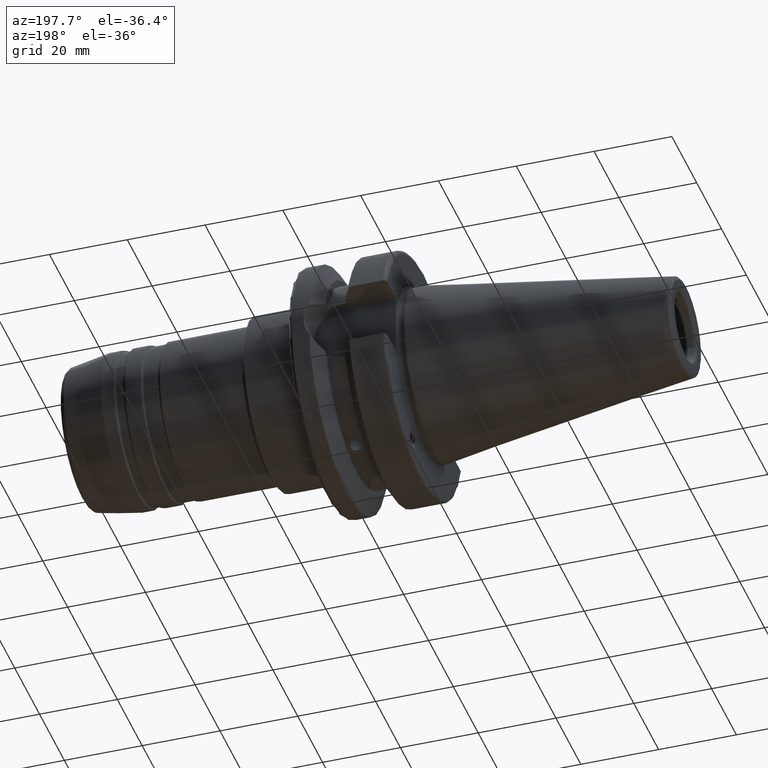
[diagram: clean part render]
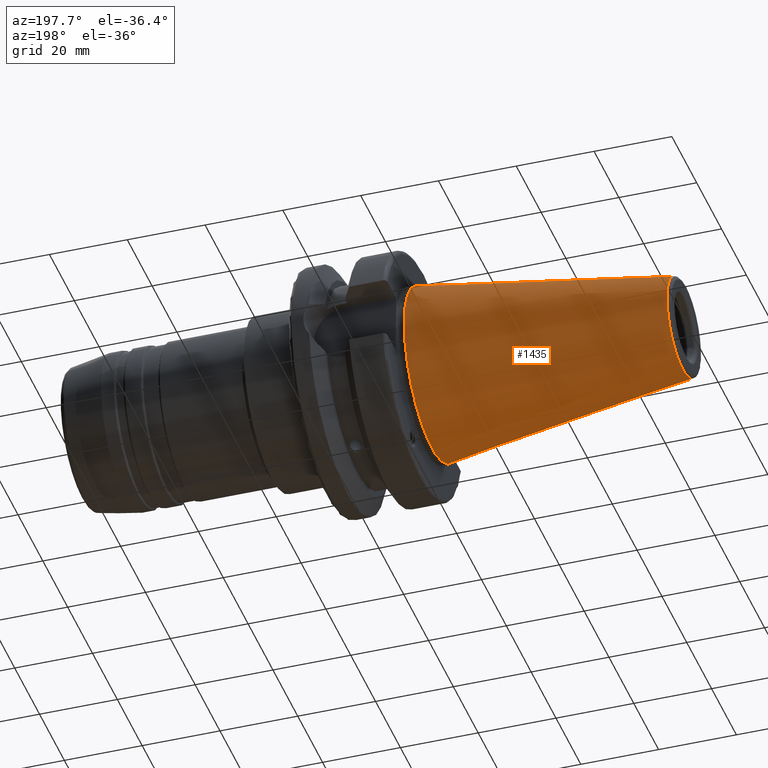
[diagram: same view with one face highlighted and labeled with its STEP entity id]
A machine part, auxiliary view. The second image highlights one B-rep face of the part: STEP entity #1435.
In plain terms, the highlighted conical surface has half-angle 8.297 deg.
Its self-contained STEP definition (entity closure, byte-faithful):
#89=CONICAL_SURFACE('',#1647,17.5186442890469,0.144812498238939);
#208=FACE_OUTER_BOUND('',#309,.T.);
#309=EDGE_LOOP('',(#1263,#1264,#1265,#1266,#1267));
#392=LINE('',#2789,#462);
#462=VECTOR('',#2099,17.5186442890469);
#545=CIRCLE('',#1644,12.8122885780937);
#546=CIRCLE('',#1645,12.8122885780937);
#548=CIRCLE('',#1648,22.225);
#686=VERTEX_POINT('',#2781);
#687=VERTEX_POINT('',#2782);
#688=VERTEX_POINT('',#2787);
#885=EDGE_CURVE('',#686,#687,#545,.T.);
#886=EDGE_CURVE('',#687,#686,#546,.T.);
#888=EDGE_CURVE('',#688,#688,#548,.T.);
#889=EDGE_CURVE('',#688,#686,#392,.T.);
#1263=ORIENTED_EDGE('',*,*,#888,.F.);
#1264=ORIENTED_EDGE('',*,*,#889,.T.);
#1265=ORIENTED_EDGE('',*,*,#885,.T.);
#1266=ORIENTED_EDGE('',*,*,#886,.T.);
#1267=ORIENTED_EDGE('',*,*,#889,.F.);
#1435=ADVANCED_FACE('',(#208),#89,.T.);
#1644=AXIS2_PLACEMENT_3D('',#2783,#2089,#2090);
#1645=AXIS2_PLACEMENT_3D('',#2784,#2091,#2092);
#1647=AXIS2_PLACEMENT_3D('',#2786,#2095,#2096);
#1648=AXIS2_PLACEMENT_3D('',#2788,#2097,#2098);
#2089=DIRECTION('center_axis',(1.,0.,0.));
#2090=DIRECTION('ref_axis',(0.,0.,-1.));
#2091=DIRECTION('center_axis',(1.,0.,0.));
#2092=DIRECTION('ref_axis',(0.,0.,-1.));
#2095=DIRECTION('center_axis',(1.,0.,0.));
#2096=DIRECTION('ref_axis',(0.,1.,0.));
#2097=DIRECTION('center_axis',(1.,0.,0.));
#2098=DIRECTION('ref_axis',(0.,0.,-1.));
#2099=DIRECTION('',(-0.989532981063281,0.144306893071729,1.76724974695192E-17));
#2781=CARTESIAN_POINT('',(-64.5443068930717,-12.8122885780937,-1.56905281969147E-15));
#2782=CARTESIAN_POINT('',(-64.5443068930717,-1.56905281969147E-15,12.8122885780937));
#2783=CARTESIAN_POINT('Origin',(-64.5443068930717,0.,0.));
#2784=CARTESIAN_POINT('Origin',(-64.5443068930717,0.,0.));
#2786=CARTESIAN_POINT('Origin',(-32.2721534465359,0.,0.));
#2787=CARTESIAN_POINT('',(4.44089209850063E-15,-22.225,-2.72177751110499E-15));
#2788=CARTESIAN_POINT('Origin',(0.,0.,0.));
#2789=CARTESIAN_POINT('',(-32.2721534465359,-17.5186442890469,-2.14541516539823E-15));